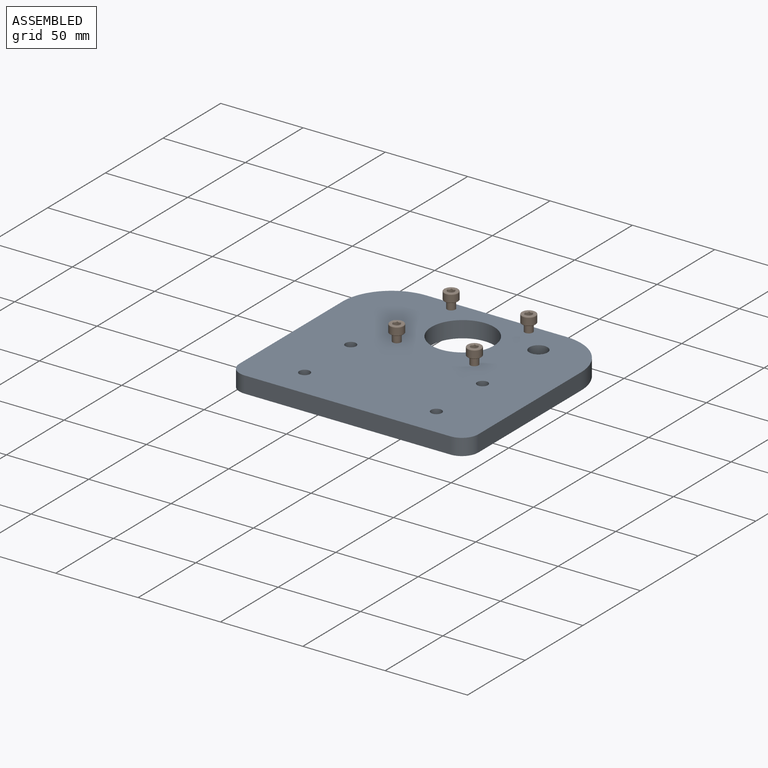
[diagram: assembled view]
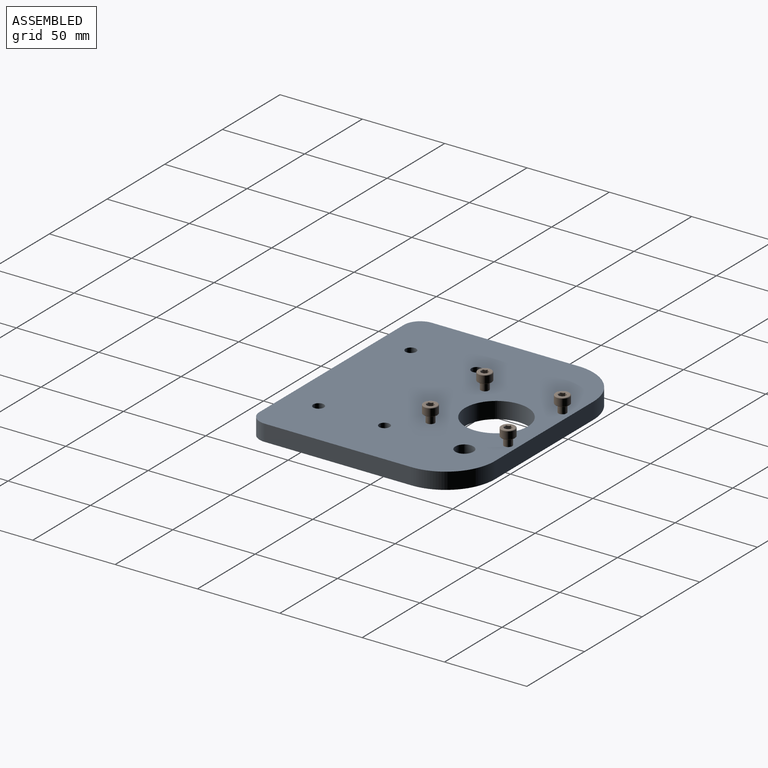
[diagram: assembled view, second angle]
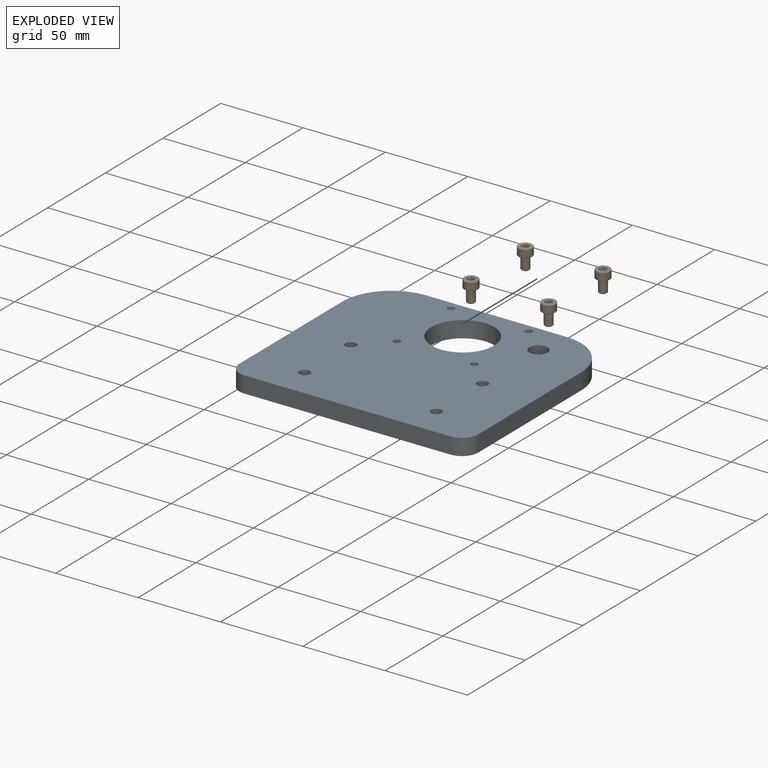
[diagram: exploded view]
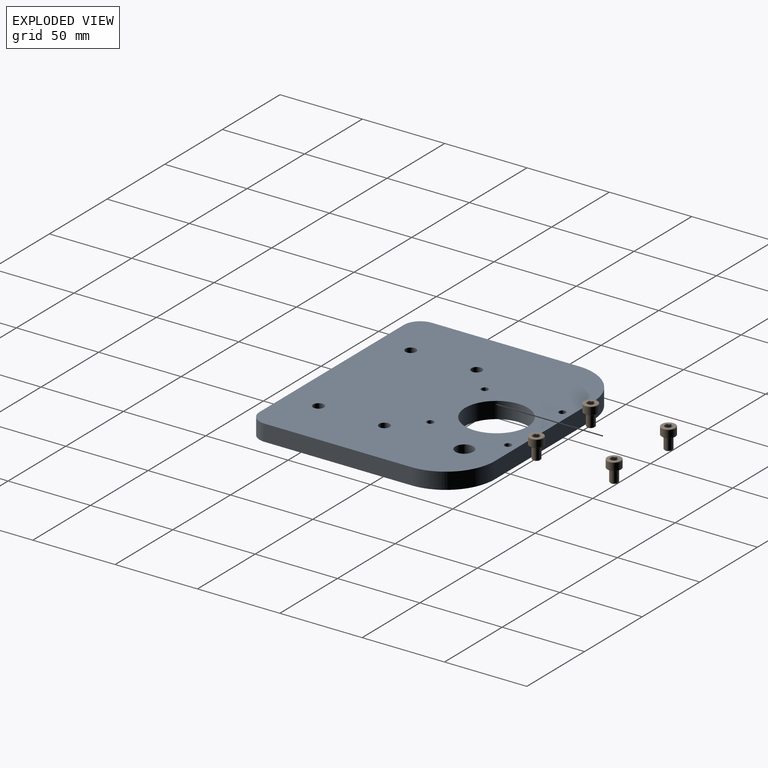
[diagram: exploded view, second angle]
FCSTD DOCUMENT  (FreeCAD 2023.1102R14555 (Git shallow))
Label: ПлитаМотораY
License: All rights reserved
LicenseURL: https://en.wikipedia.org/wiki/All_rights_reserved
objects: App::FeaturePython×13, Part::FeaturePython×11, App::LinkElement×4, App::Link×3
note: 10 computed .brp shape members not serialized (recipe doc carries the construction recipe); baked Part::Feature solids carry a one-line shape summary decoded from their .brp
EXTERNAL_REF file=Деталі/ПластинаY2.FCStd obj=Body
EXTERNAL_REF file=Деталі/NEMA23.FCStd obj=Assembly

FEATURE [App::Link] Link  label="ПластинаY2"
  AutoLinkLabel = false
  AutoPlacement = true
  LinkPlacement = pos=(-28.2,-128.2,-47.9) rot=(0,1.03712,0;0rad)
  LinkedObject = -> <external Деталі/ПластинаY2.FCStd>#Body
  Placement = pos=(-28.2,-128.2,-47.9) rot=(0,1.03712,0;0rad)
  SyncGroupVisibility = false
  TreeRank = 924
  _LinkVersion = 1
FEATURE [App::Link] Link001  label="NEMA23motor"
  AutoLinkLabel = false
  AutoPlacement = true
  LinkPlacement = pos=(0,0,0) rot=(0,1,0;3.14159rad)
  LinkedObject = -> <external Деталі/NEMA23.FCStd>#Assembly
  Placement = pos=(0,0,0) rot=(0,1,0;3.14159rad)
  SyncGroupVisibility = false
  TreeRank = 925
  _LinkVersion = 1
FEATURE [Part::FeaturePython] Screw  label="M5x8-Screw"  # Fasteners workbench fastener (typed FeaturePython)
  InvalidShape = false
  TreeRank = 942
  ValidateShape = false
  diameter = 6
  invert = false
  leftHanded = false
  length = 0
  lengthCustom = 8
  matchOuter = false
  offset = 0
  thread = false
  type = 48
FEATURE [App::LinkElement] Link002_i0
  LinkPlacement = pos=(-4.63,-4.63,-33.1) rot=(-8e-06,1,0;0rad)
  LinkedObject = -> Screw
  Placement = pos=(-4.63,-4.63,-33.1) rot=(-8e-06,1,0;0rad)
  TreeRank = 943
  _LinkOwner = 4763
  _LinkVersion = 1
FEATURE [App::LinkElement] Link002_i1
  LinkPlacement = pos=(-4.63,-51.77,-33.1) rot=(-8e-06,1.06905,0;0rad)
  LinkedObject = -> Screw
  Placement = pos=(-4.63,-51.77,-33.1) rot=(-8e-06,1.06905,0;0rad)
  TreeRank = 953
  _LinkOwner = 4763
  _LinkVersion = 0
FEATURE [App::LinkElement] Link002_i2
  LinkPlacement = pos=(-51.77,-4.63,-33.1) rot=(-8e-06,1.06905,0;0rad)
  LinkedObject = -> Screw
  Placement = pos=(-51.77,-4.63,-33.1) rot=(-8e-06,1.06905,0;0rad)
  TreeRank = 954
  _LinkOwner = 4763
  _LinkVersion = 0
FEATURE [App::LinkElement] Link002_i3
  LinkPlacement = pos=(-51.77,-51.77,-33.1) rot=(-8e-06,1.06905,0;0rad)
  LinkedObject = -> Screw
  Placement = pos=(-51.77,-51.77,-33.1) rot=(-8e-06,1.06905,0;0rad)
  TreeRank = 955
  _LinkOwner = 4763
  _LinkVersion = 0
FEATURE [App::Link] Link002  label="M5x8-Screw001"
  AutoLinkLabel = true
  AutoPlacement = true
  ElementCount = 4
  ElementList = -> [Link002_i0,Link002_i1,Link002_i2,Link002_i3]
  LinkedObject = -> Screw
  SyncGroupVisibility = false
  TreeRank = 941
  _LinkVersion = 1
FEATURE [Part::FeaturePython] Parts  # WARN: FeaturePython — macro-defined, semantics opaque (R4)
  Group = -> [Link,Link001,Link002]
  GroupMode = 0
  InvalidShape = false
  TreeRank = 929
  ValidateShape = false
  _LinkVersion = 1
FEATURE [Part::FeaturePython] Assembly  label="MotorPlateY"  # WARN: FeaturePython — macro-defined, semantics opaque (R4)
  AutoRelax = true
  BuildShape = 0
  Freeze = false
  Group = -> [Constraints,Elements,Parts]
  InvalidShape = false
  TreeRank = 926
  ValidateShape = false
  Verbose = false
  _LinkVersion = 1
  _SolverType = 0
  _Version = 1
FEATURE [App::FeaturePython] Constraints  # WARN: FeaturePython — macro-defined, semantics opaque (R4)
  Group = -> [Constraint,Constraint001,Constraint002,Constraint003]
  TreeRank = 927
  _LinkVersion = 1
  _Version = 1
FEATURE [App::FeaturePython] Elements  # WARN: FeaturePython — macro-defined, semantics opaque (R4)
  Group = -> [Element,Element001,Element002,Element003,_Element,_Element001,_Element002,_Element003]
  TreeRank = 928
  _LinkVersion = 1
FEATURE [Part::FeaturePython] Element  # link proxy (typed FeaturePython)
  Detach = false
  InvalidShape = false
  LinkTransform = true
  LinkedObject = -> Link [Pad.Edge27]
  TreeRank = 930
  ValidateShape = false
  _LinkVersion = 1
  _Parent = -> Elements
FEATURE [Part::FeaturePython] Element001  # link proxy (typed FeaturePython)
  Detach = false
  InvalidShape = false
  LinkTransform = true
  LinkedObject = -> Link001 [1.$Element002.]
  TreeRank = 931
  ValidateShape = false
  _LinkVersion = 1
  _Parent = -> Elements
FEATURE [App::FeaturePython] Constraint  label="PlaneCoincident"  # WARN: FeaturePython — macro-defined, semantics opaque (R4)
  Angle = 0
  AnglePitch = 0
  AngleRoll = 0
  Cascade = false
  Disabled = false
  Group = -> [ElementLink,ElementLink001]
  LockAngle = false
  Multiply = false
  OffsetX = 0
  OffsetY = 0
  TreeRank = 932
  _ConstraintType = 35
  _LinkVersion = 1
  _Parent = -> Constraints
FEATURE [App::FeaturePython] ElementLink  label="Element001"  # link proxy (typed FeaturePython)
  LinkTransform = true
  LinkedObject = -> Element001
  TreeRank = 933
  _LinkVersion = 1
  _Parent = -> Constraint
FEATURE [App::FeaturePython] ElementLink001  label="Element"  # link proxy (typed FeaturePython)
  LinkTransform = true
  LinkedObject = -> Element
  TreeRank = 934
  _LinkVersion = 1
  _Parent = -> Constraint
FEATURE [Part::FeaturePython] Element002  # link proxy (typed FeaturePython)
  Detach = false
  InvalidShape = false
  LinkTransform = true
  LinkedObject = -> Link [Pad.Edge48]
  TreeRank = 935
  ValidateShape = false
  _LinkVersion = 1
  _Parent = -> Elements
FEATURE [Part::FeaturePython] Element003  # link proxy (typed FeaturePython)
  Detach = false
  InvalidShape = false
  LinkTransform = true
  LinkedObject = -> Link001 [1.$Element013.]
  TreeRank = 936
  ValidateShape = false
  _LinkVersion = 1
  _Parent = -> Elements
FEATURE [App::FeaturePython] Constraint001  label="PlaneCoincident001"  # WARN: FeaturePython — macro-defined, semantics opaque (R4)
  Angle = 0
  AnglePitch = 0
  AngleRoll = 0
  Cascade = false
  Disabled = false
  Group = -> [ElementLink002,ElementLink003]
  LockAngle = false
  Multiply = false
  OffsetX = 0
  OffsetY = 0
  TreeRank = 937
  _ConstraintType = 35
  _LinkVersion = 1
  _Parent = -> Constraints
FEATURE [App::FeaturePython] ElementLink002  label="Element003"  # link proxy (typed FeaturePython)
  LinkTransform = true
  LinkedObject = -> Element003
  TreeRank = 938
  _LinkVersion = 1
  _Parent = -> Constraint001
FEATURE [App::FeaturePython] ElementLink003  label="Element002"  # link proxy (typed FeaturePython)
  LinkTransform = true
  LinkedObject = -> Element002
  TreeRank = 939
  _LinkVersion = 1
  _Parent = -> Constraint001
FEATURE [App::FeaturePython] Constraint002  label="Locked"  # WARN: FeaturePython — macro-defined, semantics opaque (R4)
  Disabled = false
  Group = -> [ElementLink004]
  TreeRank = 944
  _ConstraintType = 0
  _LinkVersion = 1
  _Parent = -> Constraints
FEATURE [App::FeaturePython] ElementLink004  label="_Element"  # link proxy (typed FeaturePython)
  LinkTransform = true
  LinkedObject = -> _Element
  TreeRank = 945
  _LinkVersion = 1
  _Parent = -> Constraint002
FEATURE [Part::FeaturePython] _Element  # link proxy (typed FeaturePython)
  Detach = false
  InvalidShape = false
  LinkTransform = true
  LinkedObject = -> Link [Pad.Face20]
  TreeRank = 946
  ValidateShape = false
  _LinkVersion = 1
  _Parent = -> Elements
FEATURE [App::FeaturePython] Constraint003  label="PlaneCoincident002"  # WARN: FeaturePython — macro-defined, semantics opaque (R4)
  Angle = 0
  AnglePitch = 0
  AngleRoll = 0
  Cascade = false
  Disabled = false
  Group = -> [ElementLink005,ElementLink006]
  LockAngle = false
  Multiply = true
  OffsetX = 0
  OffsetY = 0
  TreeRank = 947
  _ConstraintType = 35
  _LinkVersion = 1
  _Parent = -> Constraints
FEATURE [App::FeaturePython] ElementLink005  label="_Element001"  # link proxy (typed FeaturePython)
  AutoCount = true
  Count = 4
  LinkTransform = true
  LinkedObject = -> _Element001
  PlacementList = 4 placements: [(-8.88178e-16,0,0),(10.6063,-4.24377,-8),(23.3189,-4.24377,-8),(36.0316,-4.24377,-8)]
  ShowElement = false
  TreeRank = 948
  _LinkVersion = 1
  _Parent = -> Constraint003
FEATURE [Part::FeaturePython] _Element001  # link proxy (typed FeaturePython)
  Detach = false
  InvalidShape = false
  LinkTransform = true
  LinkedObject = -> Link002 [0.Edge30]
  TreeRank = 949
  ValidateShape = false
  _LinkVersion = 1
  _Parent = -> Elements
FEATURE [App::FeaturePython] ElementLink006  label="_Element004"  # link proxy (typed FeaturePython)
  LinkTransform = true
  LinkedObject = -> _Element003
  NoExpand = false
  TreeRank = 950
  _LinkVersion = 1
  _Parent = -> Constraint003
FEATURE [Part::FeaturePython] _Element002  # link proxy (typed FeaturePython)
  Detach = false
  InvalidShape = false
  LinkTransform = true
  LinkedObject = -> Link001 [1.$Element010.]
  TreeRank = 951
  ValidateShape = false
  _LinkVersion = 1
  _Parent = -> Elements
FEATURE [Part::FeaturePython] _Element003  label="_Element004"  # link proxy (typed FeaturePython)
  Detach = false
  InvalidShape = false
  LinkTransform = true
  LinkedObject = -> Link001 [1.$Element014.]
  TreeRank = 952
  ValidateShape = false
  _LinkVersion = 0
  _Parent = -> Elements

RESOLVED EXTERNAL PARTS (link-assembly join: the EXTERNAL_REF files above that resolve inside this repo's crawl, each included once):
---- part Деталі/NEMA23.FCStd = doc fcstd_a94dadf50ec1 ----
FCSTD DOCUMENT  (FreeCAD 2023.1102R14555 (Git shallow))
Label: NEMA23
License: All rights reserved
LicenseURL: http://en.wikipedia.org/wiki/All_rights_reserved
objects: Part::FeaturePython×17, App::FeaturePython×10, Sketcher::SketchObject×7, PartDesign::Pad×6, PartDesign::SubShapeBinder×3, PartDesign::Body×3, PartDesign::Boolean×1, PartDesign::Pocket×1, App::Link×1
note: 59 computed .brp shape members not serialized (recipe doc carries the construction recipe); baked Part::Feature solids carry a one-line shape summary decoded from their .brp
EXTERNAL_REF file=../../../ТаблицаПараметров.FCStd obj=Spreadsheet009
EXTERNAL_REF file=СтанинаСборка_.FCStd obj=Assembly

FEATURE [Sketcher::SketchObject] Sketch001
  ArcFitTolerance = 0
  ExternalBSplineMaxDegree = 0
  ExternalBSplineTolerance = 0
  FullyConstrained = true
  InternalTolerance = 1e-06
  InvalidShape = false
  MakeInternals = false
  MapMode = 5
  Placement = pos=(0,0,4.8) rot=(0,0,1;0rad)
  TreeRank = 0
  ValidateShape = false
  expr: Constraints[12] = <<Link(NEMA23Table)>>.DiamOtv / 2
  expr: Constraints[22] = <<Link(NEMA23Table)>>.DistOtv
  sketch-geometry (16):
    g0: ArcOfCircle CenterX=51.77 CenterY=-51.77 CenterZ=0 NormalX=0 NormalY=0 NormalZ=1 AngleXU=0 Radius=4.63 StartAngle=4.71239 EndAngle=6.28319
    g1: LineSegment StartX=56.4 StartY=-51.77 StartZ=0 EndX=56.4 EndY=-4.63 EndZ=0
    g2: ArcOfCircle CenterX=51.77 CenterY=-4.63 CenterZ=0 NormalX=0 NormalY=0 NormalZ=1 AngleXU=0 Radius=4.63 StartAngle=0 EndAngle=1.5708
    g3: LineSegment StartX=51.77 StartY=9e-16 StartZ=0 EndX=4.63 EndY=9e-16 EndZ=0
    g4: ArcOfCircle CenterX=4.63 CenterY=-4.63 CenterZ=0 NormalX=0 NormalY=0 NormalZ=1 AngleXU=0 Radius=4.63 StartAngle=1.5708 EndAngle=3.14159
    g5: LineSegment StartX=0 StartY=-4.63 StartZ=0 EndX=0 EndY=-51.77 EndZ=0
    g6: ArcOfCircle CenterX=4.63 CenterY=-51.77 CenterZ=0 NormalX=0 NormalY=0 NormalZ=1 AngleXU=-3.14159 Radius=4.63 StartAngle=0 EndAngle=1.5708
    g7: LineSegment StartX=4.63 StartY=-56.4 StartZ=0 EndX=51.77 EndY=-56.4 EndZ=0
    g8: Circle CenterX=4.63 CenterY=-4.63 CenterZ=0 NormalX=0 NormalY=0 NormalZ=1 AngleXU=0 Radius=2.5
    g9: LineSegment [constr] StartX=4.63 StartY=-4.63 StartZ=0 EndX=51.77 EndY=-4.63 EndZ=0
    g10: LineSegment [constr] StartX=51.77 StartY=-4.63 StartZ=0 EndX=51.77 EndY=-51.77 EndZ=0
    g11: LineSegment [constr] StartX=51.77 StartY=-51.77 StartZ=0 EndX=4.63 EndY=-51.77 EndZ=0
    g12: LineSegment [constr] StartX=4.63 StartY=-51.77 StartZ=0 EndX=4.63 EndY=-4.63 EndZ=0
    g13: Circle CenterX=51.77 CenterY=-4.63 CenterZ=0 NormalX=0 NormalY=0 NormalZ=1 AngleXU=0 Radius=2.5
    g14: Circle CenterX=51.77 CenterY=-51.77 CenterZ=0 NormalX=0 NormalY=0 NormalZ=1 AngleXU=0 Radius=2.5
    g15: Circle CenterX=4.63 CenterY=-51.77 CenterZ=0 NormalX=0 NormalY=0 NormalZ=1 AngleXU=0 Radius=2.5
  constraints (45):
    c: Coincident(g0,g1)
    c: Coincident(g1,g2)
    c: Coincident(g2,g3)
    c: Coincident(g3,g4)
    c: Coincident(g4,g5)
    c: Coincident(g5,g6)
    c: Coincident(g6,g7)
    c: Horizontal(g7)
    c: Coincident(g7,g0)
    c: DistanceX(g4) = 4.63
    c: DistanceY(g4) = -4.63
    c: Coincident(g4,g8)
    c: Radius(g8) = 2.5
    c: Coincident(g9,g10)
    c: Coincident(g10,g11)
    c: Coincident(g11,g12)
    c: Coincident(g12,g9)
    c: Horizontal(g9)
    c: Horizontal(g11)
    c: Vertical(g10)
    c: Vertical(g12)
    c: Equal(g9,g12)
    c: DistanceX(g9,g9) = 47.14
    c: Coincident(g6,g11)
    c: Coincident(g6,g15)
    c: Coincident(g0,g10)
    c: Coincident(g0,g14)
    c: Coincident(g2,g9)
    c: Coincident(g2,g13)
    c: Equal(g8,g13)
    c: Equal(g13,g14)
    c: Equal(g14,g15)
    c: Horizontal(g4,g4)
    c: Vertical(g3,g4)
    c: Horizontal(g5,g6)
    c: Vertical(g6,g6)
    c: Vertical(g0,g0)
    c: Horizontal(g0,g0)
    c: Horizontal(g1,g2)
    c: Vertical(g2,g2)
    c: Radius(g2) = 4.63
    c: Radius(g0) = 4.63
    c: Radius(g4) = 4.63
    c: Horizontal(g3)
    c: Vertical(g5)
FEATURE [PartDesign::Pad] Pad002
  AddSubType = 0
  AutoTaperInnerAngle = false
  CheckUpToFaceLimits = true
  ClaimChildren = false
  Direction = (0,0,1)
  Fit = 0
  FitJoin = 0
  InnerFit = 0
  InnerFitJoin = 0
  InvalidShape = false
  Length = 4.8
  Length2 = 100
  NewSolid = false
  Profile = -> Sketch001
  Suppress = false
  TaperInnerAngle = 0
  TaperInnerAngleRev = 0
  TreeRank = 0
  Type = 0
  UsePipeForDraft = true
  ValidateShape = true
  _ProfileBasedVersion = 0
FEATURE [Sketcher::SketchObject] Sketch004
  ArcFitTolerance = 0
  AttachmentSupport = -> [Pad002]
  ExternalBSplineMaxDegree = 0
  ExternalBSplineTolerance = 0
  FullyConstrained = true
  InternalTolerance = 1e-06
  InvalidShape = false
  MakeInternals = false
  MapMode = 5
  Placement = pos=(0,0,4.8) rot=(0,0,1;3.14159rad)
  Support = -> [Pad002]
  TreeRank = 0
  ValidateShape = false
  sketch-geometry (24):
    g0: LineSegment StartX=-56.4 StartY=45.14 StartZ=0 EndX=-56.4 EndY=11.26 EndZ=0
    g1: ArcOfCircle CenterX=-54.4 CenterY=45.14 CenterZ=0 NormalX=0 NormalY=0 NormalZ=1 AngleXU=3.14159 Radius=2 StartAngle=4.71239 EndAngle=6.28319
    g2: LineSegment StartX=-51.77 StartY=47.14 StartZ=0 EndX=-54.4 EndY=47.14 EndZ=0
    g3: ArcOfCircle CenterX=-51.77 CenterY=51.77 CenterZ=0 NormalX=0 NormalY=0 NormalZ=1 AngleXU=3.14159 Radius=4.63 StartAngle=1.5708 EndAngle=3.14159
    g4: LineSegment StartX=-47.14 StartY=54.4 StartZ=0 EndX=-47.14 EndY=51.77 EndZ=0
    g5: ArcOfCircle CenterX=-45.14 CenterY=54.4 CenterZ=0 NormalX=0 NormalY=0 NormalZ=1 AngleXU=3.14159 Radius=2 StartAngle=4.71239 EndAngle=6.28319
    g6: LineSegment StartX=-11.26 StartY=56.4 StartZ=0 EndX=-45.14 EndY=56.4 EndZ=0
    g7: ArcOfCircle CenterX=-11.26 CenterY=54.4 CenterZ=0 NormalX=0 NormalY=0 NormalZ=1 AngleXU=3.14159 Radius=2 StartAngle=3.14159 EndAngle=4.71239
    g8: LineSegment StartX=-9.26 StartY=51.77 StartZ=0 EndX=-9.26 EndY=54.4 EndZ=0
    g9: ArcOfCircle CenterX=-4.63 CenterY=51.77 CenterZ=0 NormalX=0 NormalY=0 NormalZ=1 AngleXU=3.14159 Radius=4.63 StartAngle=0 EndAngle=1.5708
    g10: LineSegment StartX=-2 StartY=47.14 StartZ=0 EndX=-4.63 EndY=47.14 EndZ=0
    g11: ArcOfCircle CenterX=-2 CenterY=45.14 CenterZ=0 NormalX=0 NormalY=0 NormalZ=1 AngleXU=3.14159 Radius=2 StartAngle=3.14159 EndAngle=4.71239
    g12: LineSegment StartX=-3.1e-15 StartY=11.26 StartZ=0 EndX=-6.2e-15 EndY=45.14 EndZ=0
    g13: ArcOfCircle CenterX=-2 CenterY=11.26 CenterZ=0 NormalX=0 NormalY=0 NormalZ=1 AngleXU=3.14159 Radius=2 StartAngle=1.5708 EndAngle=3.14159
    g14: LineSegment StartX=-4.63 StartY=9.26 StartZ=0 EndX=-2 EndY=9.26 EndZ=0
    g15: ArcOfCircle CenterX=-4.63 CenterY=4.63 CenterZ=0 NormalX=0 NormalY=0 NormalZ=1 AngleXU=3.14159 Radius=4.63 StartAngle=4.71239 EndAngle=6.28319
    g16: LineSegment StartX=-9.26 StartY=2 StartZ=0 EndX=-9.26 EndY=4.63 EndZ=0
    g17: ArcOfCircle CenterX=-11.26 CenterY=2 CenterZ=0 NormalX=0 NormalY=0 NormalZ=1 AngleXU=-3.14159 Radius=2 StartAngle=1.5708 EndAngle=3.14159
    g18: LineSegment StartX=-45.14 StartY=1.057e-13 StartZ=0 EndX=-11.26 EndY=1.15e-13 EndZ=0
    g19: ArcOfCircle CenterX=-45.14 CenterY=2 CenterZ=0 NormalX=0 NormalY=0 NormalZ=1 AngleXU=3.14159 Radius=2 StartAngle=0 EndAngle=1.5708
    g20: LineSegment StartX=-47.14 StartY=4.63 StartZ=0 EndX=-47.14 EndY=2 EndZ=0
    g21: ArcOfCircle CenterX=-51.77 CenterY=4.63 CenterZ=0 NormalX=0 NormalY=0 NormalZ=1 AngleXU=3.14159 Radius=4.63 StartAngle=3.14159 EndAngle=4.71239
    g22: LineSegment StartX=-54.4 StartY=9.26 StartZ=0 EndX=-51.77 EndY=9.26 EndZ=0
    g23: ArcOfCircle CenterX=-54.4 CenterY=11.26 CenterZ=0 NormalX=0 NormalY=0 NormalZ=1 AngleXU=3.14159 Radius=2 StartAngle=0 EndAngle=1.5708
  constraints (84):
    c: Vertical(g0)
    c: Coincident(g0,g1)
    c: Coincident(g1,g2)
    c: Coincident(g2,g3)
    c: Coincident(g3,g4)
    c: Coincident(g4,g5)
    c: Coincident(g5,g6)
    c: Coincident(g6,g7)
    c: Coincident(g7,g8)
    c: Vertical(g8)
    c: Coincident(g8,g9)
    c: Coincident(g9,g10)
    c: Coincident(g10,g11)
    c: Coincident(g11,g12)
    c: Coincident(g12,g13)
    c: Coincident(g13,g14)
    c: Coincident(g14,g15)
    c: Coincident(g15,g16)
    c: Vertical(g16)
    c: Coincident(g16,g17)
    c: Coincident(g17,g18)
    c: Coincident(g18,g19)
    c: Coincident(g19,g20)
    c: Coincident(g20,g21)
    c: Coincident(g21,g22)
    c: Horizontal(g22)
    c: Coincident(g22,g23)
    c: Coincident(g23,g0)
    c: Equal(g0,g6)
    c: Equal(g6,g12)
    c: Equal(g12,g18)
    c: DistanceX(g6,g6) = 33.88
    c: Radius(g3) = 4.63
    c: Equal(g3,g9)
    c: Equal(g3,g15)
    c: Equal(g3,g21)
    c: Equal(g2,g22)
    c: Equal(g22,g20)
    c: Equal(g20,g16)
    c: Equal(g16,g14)
    c: Equal(g14,g10)
    c: Equal(g10,g8)
    c: Equal(g8,g4)
    c: DistanceY(g4,g4) = 2.63
    c: Radius(g5) = 2
    c: Equal(g5,g1)
    c: Equal(g5,g23)
    c: Equal(g5,g19)
    c: Equal(g5,g17)
    c: Equal(g5,g13)
    c: Equal(g5,g11)
    c: Equal(g5,g7)
    c: Horizontal(g0,g1)
    c: Horizontal(g1,g11)
    c: Horizontal(g11,g11)
    c: Horizontal(g0,g23)
    c: Horizontal(g23,g13)
    c: Horizontal(g13,g12)
    c: Vertical(g22,g23)
    c: Vertical(g1,g1)
    c: Vertical(g11,g10)
    c: Vertical(g10,g13)
    c: Vertical(g13,g13)
    c: Horizontal(g4,g5)
    c: Horizontal(g7,g7)
    c: Horizontal(g19,g19)
    c: Horizontal(g19,g17)
    c: Horizontal(g17,g16)
    c: Vertical(g18,g19)
    c: Vertical(g19,g5)
    c: Vertical(g5,g5)
    c: Vertical(g6,g7)
    c: Vertical(g7,g17)
    c: Vertical(g4)
    c: Horizontal(g2)
    c: Horizontal(g10)
    c: Horizontal(g14)
    c: Vertical(g20)
    c: Vertical(g3,g2)
    c: Horizontal(g21,g20)
    c: Horizontal(g8,g9)
    c: Horizontal(g3,g3)
    c: Vertical(g15,g14)
    c: PointOnObject(g18,g-1)
FEATURE [PartDesign::Pad] Pad003
  AddSubType = 0
  AutoTaperInnerAngle = false
  BaseFeature = -> Pad002
  CheckUpToFaceLimits = true
  ClaimChildren = false
  Direction = (0,0,1)
  Fit = 0
  FitJoin = 0
  InnerFit = 0
  InnerFitJoin = 0
  InvalidShape = false
  Length = 6.7
  Length2 = 100
  NewSolid = false
  Profile = -> Sketch004
  Reversed = true
  Suppress = false
  TaperInnerAngle = 0
  TaperInnerAngleRev = 0
  TreeRank = 0
  Type = 0
  UsePipeForDraft = true
  ValidateShape = true
  _ProfileBasedVersion = 0
FEATURE [Sketcher::SketchObject] Sketch005
  ArcFitTolerance = 0
  AttachmentSupport = -> [Pad003]
  ExternalBSplineMaxDegree = 0
  ExternalBSplineTolerance = 0
  FullyConstrained = true
  InternalTolerance = 1e-06
  InvalidShape = false
  MakeInternals = false
  MapMode = 5
  Placement = pos=(0,0,9.6) rot=(0,0,1;0rad)
  Support = -> [Pad003]
  TreeRank = 0
  ValidateShape = false
  expr: Constraints[0] = 28.2
  expr: Constraints[1] = -28.2
  expr: Constraints[2] = <<Link(NEMA23Table)>>.PosadkaMotor
  sketch-geometry (1):
    g0: Circle CenterX=28.2 CenterY=-28.2 CenterZ=0 NormalX=0 NormalY=0 NormalZ=1 AngleXU=0 Radius=19.05
  constraints (3):
    c: DistanceX(g0) = 28.2
    c: DistanceY(g0) = -28.2
    c: Diameter(g0) = 38.1
FEATURE [PartDesign::Pad] Pad004
  AddSubType = 0
  AutoTaperInnerAngle = false
  BaseFeature = -> Pad003
  CheckUpToFaceLimits = true
  ClaimChildren = false
  Direction = (0,0,1)
  Fit = 0
  FitJoin = 0
  InnerFit = 0
  InnerFitJoin = 0
  InvalidShape = false
  Length = 1.6
  Length2 = 100
  NewSolid = false
  Profile = -> Sketch005
  Suppress = false
  TaperInnerAngle = 0
  TaperInnerAngleRev = 0
  TreeRank = 0
  Type = 0
  UsePipeForDraft = true
  ValidateShape = true
  _ProfileBasedVersion = 0
FEATURE [PartDesign::SubShapeBinder] Reference  label="Reference(Pad002)"
  BindCopyOnChange = 0
  BindMode = 0
  ClaimChildren = false
  Context = -> <external СтанинаСборка_.FCStd>#Assembly [Parts.Link003.Assembly.Parts.Body002.Boolean.Reference.]
  EdgeTolerance = 1e-06
  FillStyle = 0
  Fuse = true
  InvalidShape = false
  MakeFace = true
  MergeEdges = true
  OffsetFill = false
  OffsetIntersection = false
  OffsetJoinType = 0
  OffsetOpenResult = false
  Outline = false
  PartialLoad = false
  Refine = true
  Relative = true
  SplitEdges = false
  Support = -> [Pad002]
  TightBound = false
  TreeRank = 0
  ValidateShape = false
  _Version = 7
FEATURE [PartDesign::SubShapeBinder] Reference001  label="Reference001(Pad003)"
  BindCopyOnChange = 0
  BindMode = 0
  ClaimChildren = false
  Context = -> <external СтанинаСборка_.FCStd>#Assembly [Parts.Link003.Assembly.Parts.Body002.Boolean.Reference001.]
  EdgeTolerance = 1e-06
  FillStyle = 0
  Fuse = true
  InvalidShape = false
  MakeFace = true
  MergeEdges = true
  OffsetFill = false
  OffsetIntersection = false
  OffsetJoinType = 0
  OffsetOpenResult = false
  Outline = false
  PartialLoad = false
  Refine = true
  Relative = true
  SplitEdges = false
  Support = -> [Pad003]
  TightBound = false
  TreeRank = 0
  ValidateShape = false
  _Version = 7
FEATURE [PartDesign::SubShapeBinder] Reference002  label="Reference002(Pad004)"
  BindCopyOnChange = 0
  BindMode = 0
  ClaimChildren = false
  Context = -> <external СтанинаСборка_.FCStd>#Assembly [Parts.Link003.Assembly.Parts.Body002.Boolean.Reference002.]
  EdgeTolerance = 1e-06
  FillStyle = 0
  Fuse = true
  InvalidShape = false
  MakeFace = true
  MergeEdges = true
  OffsetFill = false
  OffsetIntersection = false
  OffsetJoinType = 0
  OffsetOpenResult = false
  Outline = false
  PartialLoad = false
  Refine = true
  Relative = true
  SplitEdges = false
  Support = -> [Pad004]
  TightBound = false
  TreeRank = 0
  ValidateShape = false
  _Version = 7
FEATURE [PartDesign::Boolean] Boolean
  ClaimAllChildren = false
  ExportMode = 0
  Group = -> [Reference,Reference001,Reference002]
  InvalidShape = false
  NewSolid = true
  Refine = true
  Suppress = false
  TreeRank = 0
  Type = 0
  ValidateShape = true
  _ExportChildren = -> [Reference,Reference001,Reference002]
  _GroupVersion = 1
FEATURE [Sketcher::SketchObject] Sketch007
  ArcFitTolerance = 0
  AttachmentSupport = -> [Boolean]
  ExternalBSplineMaxDegree = 0
  ExternalBSplineTolerance = 0
  FullyConstrained = true
  InternalTolerance = 1e-06
  InvalidShape = false
  MakeInternals = false
  MapMode = 5
  Placement = pos=(0,0,-1.9) rot=(1,0,0;3.14159rad)
  Support = -> [Boolean]
  TreeRank = 0
  ValidateShape = false
  expr: Constraints[0] = 28.2
  expr: Constraints[1] = 28.2
  expr: Constraints[2] = 6
  sketch-geometry (1):
    g0: Circle CenterX=28.2 CenterY=28.2 CenterZ=0 NormalX=0 NormalY=0 NormalZ=1 AngleXU=0 Radius=3
  constraints (3):
    c: DistanceX(g0) = 28.2
    c: DistanceY(g0) = 28.2
    c: Diameter(g0) = 6
FEATURE [PartDesign::Pocket] Pocket
  AddSubType = 1
  AutoTaperInnerAngle = false
  BaseFeature = -> Boolean
  CheckUpToFaceLimits = true
  ClaimChildren = false
  Direction = (0,0,1)
  Fit = 0
  FitJoin = 0
  InnerFit = 0
  InnerFitJoin = 0
  InvalidShape = false
  Length = 0
  Length2 = 100
  NewSolid = false
  Profile = -> Sketch007
  Suppress = false
  TaperInnerAngle = 0
  TaperInnerAngleRev = 0
  TreeRank = 0
  Type = 1
  UsePipeForDraft = true
  ValidateShape = true
  _ProfileBasedVersion = 0
  _Version = 0
FEATURE [Sketcher::SketchObject] Sketch008
  ArcFitTolerance = 0
  ExternalBSplineMaxDegree = 0
  ExternalBSplineTolerance = 0
  FullyConstrained = true
  InternalTolerance = 1e-06
  InvalidShape = false
  MakeInternals = false
  MapMode = 2
  Placement = pos=(0,0,-41.6) rot=(0,0,1;3.14159rad)
  TreeRank = 0
  ValidateShape = false
  sketch-geometry (26):
    g0: LineSegment StartX=-56.4 StartY=45.14 StartZ=0 EndX=-56.4 EndY=11.26 EndZ=0
    g1: ArcOfCircle CenterX=-54.4 CenterY=45.14 CenterZ=0 NormalX=0 NormalY=0 NormalZ=1 AngleXU=3.14159 Radius=2 StartAngle=4.71239 EndAngle=6.28319
    g2: LineSegment StartX=-51.77 StartY=47.14 StartZ=0 EndX=-54.4 EndY=47.14 EndZ=0
    g3: ArcOfCircle CenterX=-51.77 CenterY=51.77 CenterZ=0 NormalX=0 NormalY=0 NormalZ=1 AngleXU=3.14159 Radius=4.63 StartAngle=1.5708 EndAngle=3.14159
    g4: LineSegment StartX=-47.14 StartY=54.4 StartZ=0 EndX=-47.14 EndY=51.77 EndZ=0
    g5: ArcOfCircle CenterX=-45.14 CenterY=54.4 CenterZ=0 NormalX=0 NormalY=0 NormalZ=1 AngleXU=3.14159 Radius=2 StartAngle=4.71239 EndAngle=6.28319
    g6: LineSegment StartX=-11.26 StartY=56.4 StartZ=0 EndX=-45.14 EndY=56.4 EndZ=0
    g7: ArcOfCircle CenterX=-11.26 CenterY=54.4 CenterZ=0 NormalX=0 NormalY=0 NormalZ=1 AngleXU=3.14159 Radius=2 StartAngle=3.14159 EndAngle=4.71239
    g8: LineSegment StartX=-9.26 StartY=51.77 StartZ=0 EndX=-9.26 EndY=54.4 EndZ=0
    g9: ArcOfCircle CenterX=-4.63 CenterY=51.77 CenterZ=0 NormalX=0 NormalY=0 NormalZ=1 AngleXU=3.14159 Radius=4.63 StartAngle=0 EndAngle=1.5708
    g10: LineSegment StartX=-2 StartY=47.14 StartZ=0 EndX=-4.63 EndY=47.14 EndZ=0
    g11: ArcOfCircle CenterX=-2 CenterY=45.14 CenterZ=0 NormalX=0 NormalY=0 NormalZ=1 AngleXU=3.14159 Radius=2 StartAngle=3.14159 EndAngle=4.71239
    g12: LineSegment StartX=0 StartY=11.26 StartZ=0 EndX=-7.1e-15 EndY=45.14 EndZ=0
    g13: ArcOfCircle CenterX=-2 CenterY=11.26 CenterZ=0 NormalX=0 NormalY=0 NormalZ=1 AngleXU=3.14159 Radius=2 StartAngle=1.5708 EndAngle=3.14159
    g14: LineSegment StartX=-4.63 StartY=9.26 StartZ=0 EndX=-2 EndY=9.26 EndZ=0
    g15: ArcOfCircle CenterX=-4.63 CenterY=4.63 CenterZ=0 NormalX=0 NormalY=0 NormalZ=1 AngleXU=3.14159 Radius=4.63 StartAngle=4.71239 EndAngle=6.28319
    g16: LineSegment StartX=-9.26 StartY=2 StartZ=0 EndX=-9.26 EndY=4.63 EndZ=0
    g17: ArcOfCircle CenterX=-11.26 CenterY=2 CenterZ=0 NormalX=0 NormalY=0 NormalZ=1 AngleXU=-3.14159 Radius=2 StartAngle=1.5708 EndAngle=3.14159
    g18: LineSegment StartX=-45.14 StartY=1.43e-13 StartZ=0 EndX=-11.26 EndY=1.43e-13 EndZ=0
    g19: ArcOfCircle CenterX=-45.14 CenterY=2 CenterZ=0 NormalX=0 NormalY=0 NormalZ=1 AngleXU=3.14159 Radius=2 StartAngle=0 EndAngle=1.5708
    g20: LineSegment StartX=-47.14 StartY=4.63 StartZ=0 EndX=-47.14 EndY=2 EndZ=0
    g21: ArcOfCircle CenterX=-51.77 CenterY=4.63 CenterZ=0 NormalX=0 NormalY=0 NormalZ=1 AngleXU=3.14159 Radius=4.63 StartAngle=3.14159 EndAngle=4.71239
    g22: LineSegment StartX=-54.4 StartY=9.26 StartZ=0 EndX=-51.77 EndY=9.26 EndZ=0
    g23: ArcOfCircle CenterX=-54.4 CenterY=11.26 CenterZ=0 NormalX=0 NormalY=0 NormalZ=1 AngleXU=3.14159 Radius=2 StartAngle=0 EndAngle=1.5708
    g24: GeomPoint [constr] X=-28.2 Y=28.2 Z=0
    g25: Circle CenterX=-28.2 CenterY=28.2 CenterZ=0 NormalX=0 NormalY=0 NormalZ=1 AngleXU=0 Radius=3
  constraints (88):
    c: Vertical(g0)
    c: Coincident(g0,g1)
    c: Coincident(g1,g2)
    c: Coincident(g2,g3)
    c: Coincident(g3,g4)
    c: Coincident(g4,g5)
    c: Coincident(g5,g6)
    c: Coincident(g6,g7)
    c: Coincident(g7,g8)
    c: Vertical(g8)
    c: Coincident(g8,g9)
    c: Coincident(g9,g10)
    c: Coincident(g10,g11)
    c: Coincident(g11,g12)
    c: Coincident(g12,g13)
    c: Coincident(g13,g14)
    c: Coincident(g14,g15)
    c: Coincident(g15,g16)
    c: Vertical(g16)
    c: Coincident(g16,g17)
    c: Coincident(g17,g18)
    c: Coincident(g18,g19)
    c: Coincident(g19,g20)
    c: Coincident(g20,g21)
    c: Coincident(g21,g22)
    c: Horizontal(g22)
    c: Coincident(g22,g23)
    c: Coincident(g23,g0)
    c: Equal(g0,g6)
    c: Equal(g6,g12)
    c: Equal(g12,g18)
    c: DistanceX(g6,g6) = 33.88
    c: Radius(g3) = 4.63
    c: Equal(g3,g9)
    c: Equal(g3,g15)
    c: Equal(g3,g21)
    c: Equal(g2,g22)
    c: Equal(g22,g20)
    c: Equal(g20,g16)
    c: Equal(g16,g14)
    c: Equal(g14,g10)
    c: Equal(g10,g8)
    c: Equal(g8,g4)
    c: DistanceY(g4,g4) = 2.63
    c: Radius(g5) = 2
    c: Equal(g5,g1)
    c: Equal(g5,g23)
    c: Equal(g5,g19)
    c: Equal(g5,g17)
    c: Equal(g5,g13)
    c: Equal(g5,g11)
    c: Equal(g5,g7)
    c: Horizontal(g0,g1)
    c: Horizontal(g1,g11)
    c: Horizontal(g11,g11)
    c: Horizontal(g0,g23)
    c: Horizontal(g23,g13)
    c: Horizontal(g13,g12)
    c: Vertical(g22,g23)
    c: Vertical(g1,g1)
    c: Vertical(g11,g10)
    c: Vertical(g10,g13)
    c: Vertical(g13,g13)
    c: Horizontal(g4,g5)
    c: Horizontal(g7,g7)
    c: Horizontal(g19,g19)
    c: Horizontal(g19,g17)
    c: Horizontal(g17,g16)
    c: Vertical(g18,g19)
    c: Vertical(g19,g5)
    c: Vertical(g5,g5)
    c: Vertical(g6,g7)
    c: Vertical(g7,g17)
    c: DistanceX(g24) = -28.2
    c: DistanceY(g24) = 28.2
    c: Radius(g25) = 3
    c: Coincident(g24,g25)
    c: Vertical(g4)
    c: Horizontal(g2)
    c: Horizontal(g10)
    c: Horizontal(g14)
    c: Vertical(g20)
    c: Vertical(g3,g2)
    c: Horizontal(g21,g20)
    c: Horizontal(g8,g9)
    c: Horizontal(g3,g3)
    c: Vertical(g15,g14)
    c: PointOnObject(g18,g-1)
FEATURE [PartDesign::Pad] Pad005
  AddSubType = 0
  AutoTaperInnerAngle = false
  CheckUpToFaceLimits = true
  ClaimChildren = false
  Direction = (1,1,1)
  Fit = 0
  FitJoin = 0
  InnerFit = 0
  InnerFitJoin = 0
  InvalidShape = false
  Length = 11.5
  Length2 = 100
  NewSolid = false
  Placement = pos=(0,0,-41.6) rot=(0,0,1;3.14159rad)
  Profile = -> Sketch008
  Suppress = false
  TaperInnerAngle = 0
  TaperInnerAngleRev = 0
  TreeRank = 0
  Type = 0
  UsePipeForDraft = true
  ValidateShape = true
  _ProfileBasedVersion = 0
FEATURE [PartDesign::Body] Body003  label="ЗадняяКрышкаМотора"
  AutoGroupSolids = true
  ClaimAllChildren = false
  ExportMode = 0
  Group = -> [Sketch008,Pad005]
  InvalidShape = false
  Origin = -> Origin003
  Placement = pos=(2.13062e-11,5.5584e-12,34.5) rot=(0,0,1;0rad)
  Tip = -> Pad005
  TreeRank = 0
  ValidateShape = false
  _ExportChildren = -> [Pad005]
  _GroupVersion = 1
FEATURE [Sketcher::SketchObject] Sketch009
  ArcFitTolerance = 0
  ExternalBSplineMaxDegree = 0
  ExternalBSplineTolerance = 0
  FullyConstrained = true
  InternalTolerance = 1e-06
  InvalidShape = false
  MakeInternals = false
  MapMode = 2
  Placement = pos=(0,0,-41.6) rot=(0,0,1;3.14159rad)
  TreeRank = 0
  ValidateShape = false
  sketch-geometry (26):
    g0: LineSegment StartX=-56.4 StartY=45.14 StartZ=0 EndX=-56.4 EndY=11.26 EndZ=0
    g1: ArcOfCircle CenterX=-54.4 CenterY=45.14 CenterZ=0 NormalX=0 NormalY=0 NormalZ=1 AngleXU=3.14159 Radius=2 StartAngle=4.71239 EndAngle=6.28319
    g2: LineSegment StartX=-51.77 StartY=47.14 StartZ=0 EndX=-54.4 EndY=47.14 EndZ=0
    g3: ArcOfCircle CenterX=-51.77 CenterY=51.77 CenterZ=0 NormalX=0 NormalY=0 NormalZ=1 AngleXU=3.14159 Radius=4.63 StartAngle=1.5708 EndAngle=3.14159
    g4: LineSegment StartX=-47.14 StartY=54.4 StartZ=0 EndX=-47.14 EndY=51.77 EndZ=0
    g5: ArcOfCircle CenterX=-45.14 CenterY=54.4 CenterZ=0 NormalX=0 NormalY=0 NormalZ=1 AngleXU=3.14159 Radius=2 StartAngle=4.71239 EndAngle=6.28319
    g6: LineSegment StartX=-11.26 StartY=56.4 StartZ=0 EndX=-45.14 EndY=56.4 EndZ=0
    g7: ArcOfCircle CenterX=-11.26 CenterY=54.4 CenterZ=0 NormalX=0 NormalY=0 NormalZ=1 AngleXU=3.14159 Radius=2 StartAngle=3.14159 EndAngle=4.71239
    g8: LineSegment StartX=-9.26 StartY=51.77 StartZ=0 EndX=-9.26 EndY=54.4 EndZ=0
    g9: ArcOfCircle CenterX=-4.63 CenterY=51.77 CenterZ=0 NormalX=0 NormalY=0 NormalZ=1 AngleXU=3.14159 Radius=4.63 StartAngle=0 EndAngle=1.5708
    g10: LineSegment StartX=-2 StartY=47.14 StartZ=0 EndX=-4.63 EndY=47.14 EndZ=0
    g11: ArcOfCircle CenterX=-2 CenterY=45.14 CenterZ=0 NormalX=0 NormalY=0 NormalZ=1 AngleXU=3.14159 Radius=2 StartAngle=3.14159 EndAngle=4.71239
    g12: LineSegment StartX=-2.7e-15 StartY=11.26 StartZ=0 EndX=-2.7e-15 EndY=45.14 EndZ=0
    g13: ArcOfCircle CenterX=-2 CenterY=11.26 CenterZ=0 NormalX=0 NormalY=0 NormalZ=1 AngleXU=3.14159 Radius=2 StartAngle=1.5708 EndAngle=3.14159
    g14: LineSegment StartX=-4.63 StartY=9.26 StartZ=0 EndX=-2 EndY=9.26 EndZ=0
    g15: ArcOfCircle CenterX=-4.63 CenterY=4.63 CenterZ=0 NormalX=0 NormalY=0 NormalZ=1 AngleXU=3.14159 Radius=4.63 StartAngle=4.71239 EndAngle=6.28319
    g16: LineSegment StartX=-9.26 StartY=2 StartZ=0 EndX=-9.26 EndY=4.63 EndZ=0
    g17: ArcOfCircle CenterX=-11.26 CenterY=2 CenterZ=0 NormalX=0 NormalY=0 NormalZ=1 AngleXU=-3.14159 Radius=2 StartAngle=1.5708 EndAngle=3.14159
    g18: LineSegment StartX=-45.14 StartY=1.43e-13 StartZ=0 EndX=-11.26 EndY=1.43e-13 EndZ=0
    g19: ArcOfCircle CenterX=-45.14 CenterY=2 CenterZ=0 NormalX=0 NormalY=0 NormalZ=1 AngleXU=3.14159 Radius=2 StartAngle=0 EndAngle=1.5708
    g20: LineSegment StartX=-47.14 StartY=4.63 StartZ=0 EndX=-47.14 EndY=2 EndZ=0
    g21: ArcOfCircle CenterX=-51.77 CenterY=4.63 CenterZ=0 NormalX=0 NormalY=0 NormalZ=1 AngleXU=3.14159 Radius=4.63 StartAngle=3.14159 EndAngle=4.71239
    g22: LineSegment StartX=-54.4 StartY=9.26 StartZ=0 EndX=-51.77 EndY=9.26 EndZ=0
    g23: ArcOfCircle CenterX=-54.4 CenterY=11.26 CenterZ=0 NormalX=0 NormalY=0 NormalZ=1 AngleXU=3.14159 Radius=2 StartAngle=0 EndAngle=1.5708
    g24: GeomPoint [constr] X=-28.2 Y=28.2 Z=0
    g25: Circle CenterX=-28.2 CenterY=28.2 CenterZ=0 NormalX=0 NormalY=0 NormalZ=1 AngleXU=0 Radius=3
  constraints (88):
    c: Vertical(g0)
    c: Coincident(g0,g1)
    c: Coincident(g1,g2)
    c: Coincident(g2,g3)
    c: Coincident(g3,g4)
    c: Coincident(g4,g5)
    c: Coincident(g5,g6)
    c: Coincident(g6,g7)
    c: Coincident(g7,g8)
    c: Vertical(g8)
    c: Coincident(g8,g9)
    c: Coincident(g9,g10)
    c: Coincident(g10,g11)
    c: Coincident(g11,g12)
    c: Coincident(g12,g13)
    c: Coincident(g13,g14)
    c: Coincident(g14,g15)
    c: Coincident(g15,g16)
    c: Vertical(g16)
    c: Coincident(g16,g17)
    c: Coincident(g17,g18)
    c: Coincident(g18,g19)
    c: Coincident(g19,g20)
    c: Coincident(g20,g21)
    c: Coincident(g21,g22)
    c: Horizontal(g22)
    c: Coincident(g22,g23)
    c: Coincident(g23,g0)
    c: Equal(g0,g6)
    c: Equal(g6,g12)
    c: Equal(g12,g18)
    c: DistanceX(g6,g6) = 33.88
    c: Radius(g3) = 4.63
    c: Equal(g3,g9)
    c: Equal(g3,g15)
    c: Equal(g3,g21)
    c: Equal(g2,g22)
    c: Equal(g22,g20)
    c: Equal(g20,g16)
    c: Equal(g16,g14)
    c: Equal(g14,g10)
    c: Equal(g10,g8)
    c: Equal(g8,g4)
    c: DistanceY(g4,g4) = 2.63
    c: Radius(g5) = 2
    c: Equal(g5,g1)
    c: Equal(g5,g23)
    c: Equal(g5,g19)
    c: Equal(g5,g17)
    c: Equal(g5,g13)
    c: Equal(g5,g11)
    c: Equal(g5,g7)
    c: Horizontal(g0,g1)
    c: Horizontal(g1,g11)
    c: Horizontal(g11,g11)
    c: Horizontal(g0,g23)
    c: Horizontal(g23,g13)
    c: Horizontal(g13,g12)
    c: Vertical(g22,g23)
    c: Vertical(g1,g1)
    c: Vertical(g11,g10)
    c: Vertical(g10,g13)
    c: Vertical(g13,g13)
    c: Horizontal(g4,g5)
    c: Horizontal(g7,g7)
    c: Horizontal(g19,g19)
    c: Horizontal(g19,g17)
    c: Horizontal(g17,g16)
    c: Vertical(g18,g19)
    c: Vertical(g19,g5)
    c: Vertical(g5,g5)
    c: Vertical(g6,g7)
    c: Vertical(g7,g17)
    c: DistanceX(g24) = -28.2
    c: DistanceY(g24) = 28.2
    c: Radius(g25) = 3
    c: Coincident(g24,g25)
    c: Vertical(g4)
    c: Horizontal(g2)
    c: Horizontal(g10)
    c: Horizontal(g14)
    c: Vertical(g20)
    c: Vertical(g3,g2)
    c: Horizontal(g21,g20)
    c: Horizontal(g8,g9)
    c: Horizontal(g3,g3)
    c: Vertical(g15,g14)
    c: PointOnObject(g18,g-1)
FEATURE [PartDesign::Pad] Pad
  AddSubType = 0
  AlongSketchNormal = false
  AutoTaperInnerAngle = false
  CheckUpToFaceLimits = true
  ClaimChildren = false
  Direction = (0,0,1)
  Fit = 0
  FitJoin = 0
  InnerFit = 0
  InnerFitJoin = 0
  InvalidShape = false
  Length = 22
  Length2 = 100
  NewSolid = false
  Profile = -> Sketch009
  Suppress = false
  TaperInnerAngle = 0
  TaperInnerAngleRev = 0
  TreeRank = 0
  Type = 0
  UsePipeForDraft = true
  ValidateShape = true
  _ProfileBasedVersion = 0
  expr: Length = <<Link(NEMA23Table)>>.BodyLen
FEATURE [PartDesign::Body] Body  label="ТелоМотора"
  AutoGroupSolids = true
  ClaimAllChildren = false
  ExportMode = 0
  Group = -> [Sketch009,Pad]
  InvalidShape = false
  Origin = -> Origin
  Placement = pos=(3.49258e-11,6.96143e-11,46) rot=(0,0,1;0rad)
  Tip = -> Pad
  TreeRank = 0
  ValidateShape = false
  _ExportChildren = -> [Pad]
  _GroupVersion = 1
FEATURE [Sketcher::SketchObject] Sketch
  ArcFitTolerance = 0
  AttachmentSupport = -> [Pocket]
  ExternalBSplineMaxDegree = 0
  ExternalBSplineTolerance = 0
  FullyConstrained = true
  InternalTolerance = 1e-06
  InvalidShape = false
  MakeInternals = false
  MapMode = 5
  Placement = pos=(0,0,-1.9) rot=(1,0,0;3.14159rad)
  Support = -> [Pocket]
  TreeRank = 0
  ValidateShape = false
  expr: Constraints[0] = 28.2
  expr: Constraints[1] = 28.2
  expr: Constraints[2] = 3
  sketch-geometry (1):
    g0: Circle CenterX=28.2 CenterY=28.2 CenterZ=0 NormalX=0 NormalY=0 NormalZ=1 AngleXU=0 Radius=3
  constraints (3):
    c: DistanceX(g0) = 28.2
    c: DistanceY(g0) = 28.2
    c: Radius(g0) = 3
FEATURE [PartDesign::Pad] Pad006  label="Вал"
  AddSubType = 0
  AutoTaperInnerAngle = false
  BaseFeature = -> Pocket
  CheckUpToFaceLimits = true
  ClaimChildren = false
  Direction = (0,-1e-16,-1)
  Fit = 0
  FitJoin = 0
  InnerFit = 0
  InnerFitJoin = 0
  InvalidShape = false
  Length = 33.5
  Length2 = 33
  NewSolid = false
  Profile = -> Sketch
  Suppress = false
  TaperInnerAngle = 0
  TaperInnerAngleRev = 0
  TreeRank = 0
  Type = 4
  UsePipeForDraft = true
  ValidateShape = true
  _ProfileBasedVersion = 0
  expr: Length = <<Link(NEMA23Table)>>.TotalLen - 11.5
  expr: Length2 = 20 + 1.5 + 11.5
FEATURE [PartDesign::Body] Body002  label="ФланецМотора"
  AutoGroupSolids = false
  ClaimAllChildren = false
  ExportMode = 0
  Group = -> [Sketch001,Pad002,Sketch004,Pad003,Sketch005,Pad004,Boolean,Sketch007,Pocket,Sketch,Pad006]
  InvalidShape = false
  Origin = -> Origin002
  Placement = pos=(-8.05206e-11,-7.66987e-11,28.3) rot=(0,0,1;0rad)
  SingleSolid = true
  Tip = -> Pad006
  TreeRank = 0
  ValidateShape = false
  _ExportChildren = -> [Pad002,Pad003,Pad004,Boolean,Pocket,Pad006]
  _GroupVersion = 1
FEATURE [Part::FeaturePython] Parts  # WARN: FeaturePython — macro-defined, semantics opaque (R4)
  Group = -> [Body002,Body003,Body]
  GroupMode = 0
  InvalidShape = false
  TreeRank = 0
  ValidateShape = false
  _LinkVersion = 1
FEATURE [App::Link] Link  label="Link(NEMA23Table)"
  AutoLinkLabel = true
  AutoPlacement = true
  LinkedObject = -> <external ../../../ТаблицаПараметров.FCStd>#Spreadsheet009
  SyncGroupVisibility = false
  TreeRank = 1
  _LinkVersion = 1
FEATURE [Part::FeaturePython] Assembly  label="NEMA23motor"  # WARN: FeaturePython — macro-defined, semantics opaque (R4)
  AutoRelax = true
  Base_MotorType = 0
  BuildShape = 0
  Freeze = false
  Group = -> [Constraints,Elements,Parts]
  InvalidShape = false
  TreeRank = 0
  ValidateShape = false
  Verbose = false
  _LinkVersion = 1
  _SolverType = 0
  _Version = 1
  expr: Base_MotorType.Enum = ТаблицаПараметров#Spreadsheet009.cells[<<A4:|>>]
FEATURE [App::FeaturePython] Constraints  # WARN: FeaturePython — macro-defined, semantics opaque (R4)
  Group = -> [Constraint003,Constraint,Constraint004]
  TreeRank = 0
  _LinkVersion = 1
  _Version = 1
FEATURE [App::FeaturePython] Elements  # WARN: FeaturePython — macro-defined, semantics opaque (R4)
  Group = -> [_Element001,Element,_Element005,Element001,Element002,Element003,Element004,Element008,Element009,Element010,Element011,Element012,_Element,Element013,Element014]
  TreeRank = 0
  _LinkVersion = 1
FEATURE [Part::FeaturePython] _Element001  label="СоединениеФланцаКТелу"  # link proxy (typed FeaturePython)
  Detach = false
  InvalidShape = false
  LinkTransform = true
  LinkedObject = -> Body002 [Pocket.Face9]
  TreeRank = 0
  ValidateShape = false
  _LinkVersion = 1
  _Parent = -> Elements
FEATURE [App::FeaturePython] Constraint003  label="СоединениеКрышкиСТелом"  # WARN: FeaturePython — macro-defined, semantics opaque (R4)
  Angle = 0
  AnglePitch = 0
  AngleRoll = 0
  Cascade = false
  Disabled = false
  Group = -> [ElementLink010,ElementLink011]
  LockAngle = false
  Multiply = false
  OffsetX = 0
  OffsetY = 0
  TreeRank = 0
  _ConstraintType = 35
  _LinkVersion = 1
  _Parent = -> Constraints
FEATURE [Part::FeaturePython] _Element005  label="СоединениеТелаККрышке"  # link proxy (typed FeaturePython)
  Detach = false
  InvalidShape = false
  LinkTransform = true
  LinkedObject = -> Body [Pad.Face26]
  TreeRank = 0
  ValidateShape = false
  _LinkVersion = 1
  _Parent = -> Elements
FEATURE [Part::FeaturePython] Element  label="СоединениеТелаКФланцу"  # link proxy (typed FeaturePython)
  Detach = false
  InvalidShape = false
  LinkTransform = true
  LinkedObject = -> Body [Pad.Face27]
  TreeRank = 0
  ValidateShape = false
  _LinkVersion = 1
  _Parent = -> Elements
FEATURE [App::FeaturePython] Constraint  label="СоединениеФланцаСТелом"  # WARN: FeaturePython — macro-defined, semantics opaque (R4)
  Angle = 0
  AnglePitch = 0
  AngleRoll = 0
  Cascade = false
  Disabled = false
  Group = -> [ElementLink,ElementLink008]
  LockAngle = false
  Multiply = false
  OffsetX = 0
  OffsetY = 0
  TreeRank = 0
  _ConstraintType = 35
  _LinkVersion = 1
  _Parent = -> Constraints
FEATURE [App::FeaturePython] ElementLink  label="СоединениеФланцаКТелу"  # link proxy (typed FeaturePython)
  LinkTransform = true
  LinkedObject = -> _Element001
  TreeRank = 0
  _LinkVersion = 1
  _Parent = -> Constraint
FEATURE [App::FeaturePython] ElementLink008  label="СоединениеТелаКФланцу"  # link proxy (typed FeaturePython)
  LinkTransform = true
  LinkedObject = -> Element
  TreeRank = 0
  _LinkVersion = 1
  _Parent = -> Constraint
FEATURE [Part::FeaturePython] Element001  # link proxy (typed FeaturePython)
  Detach = false
  InvalidShape = false
  LinkTransform = true
  LinkedObject = -> Body002 [Pad006.Face5]
  TreeRank = 0
  ValidateShape = false
  _LinkVersion = 1
  _Parent = -> Elements
FEATURE [Part::FeaturePython] Element002  # link proxy (typed FeaturePython)
  Detach = false
  InvalidShape = false
  LinkTransform = true
  LinkedObject = -> Body002 [Pad006.Edge33]
  TreeRank = 0
  ValidateShape = false
  _LinkVersion = 1
  _Parent = -> Elements
FEATURE [Part::FeaturePython] Element003  # link proxy (typed FeaturePython)
  Detach = false
  InvalidShape = false
  LinkTransform = true
  LinkedObject = -> Body002 [Pad006.Face24]
  TreeRank = 0
  ValidateShape = false
  _LinkVersion = 1
  _Parent = -> Elements
FEATURE [Part::FeaturePython] Element004  # link proxy (typed FeaturePython)
  Detach = false
  InvalidShape = false
  LinkTransform = true
  LinkedObject = -> Body002 [Pad002.Face11]
  TreeRank = 0
  ValidateShape = false
  _LinkVersion = 1
  _Parent = -> Elements
FEATURE [Part::FeaturePython] Element008  # link proxy (typed FeaturePython)
  Detach = false
  InvalidShape = false
  LinkTransform = true
  LinkedObject = -> Body002 [Pad002.Edge32]
  TreeRank = 0
  ValidateShape = false
  _LinkVersion = 1
  _Parent = -> Elements
FEATURE [Part::FeaturePython] Element009  # link proxy (typed FeaturePython)
  Detach = false
  InvalidShape = false
  LinkTransform = true
  LinkedObject = -> Body002 [Pad002.Edge35]
  TreeRank = 0
  ValidateShape = false
  _LinkVersion = 1
  _Parent = -> Elements
FEATURE [Part::FeaturePython] Element010  # link proxy (typed FeaturePython)
  Detach = false
  InvalidShape = false
  LinkTransform = true
  LinkedObject = -> Body002 [Pad002.Edge26]
  TreeRank = 0
  ValidateShape = false
  _LinkVersion = 1
  _Parent = -> Elements
FEATURE [Part::FeaturePython] Element011  # link proxy (typed FeaturePython)
  Detach = false
  InvalidShape = false
  LinkTransform = true
  LinkedObject = -> Body002 [Pad002.Edge29]
  TreeRank = 0
  ValidateShape = false
  _LinkVersion = 1
  _Parent = -> Elements
FEATURE [Part::FeaturePython] Element012  # link proxy (typed FeaturePython)
  Detach = false
  InvalidShape = false
  LinkTransform = true
  LinkedObject = -> Body002 [Pad006.Edge116]
  TreeRank = 0
  ValidateShape = false
  _LinkVersion = 1
  _Parent = -> Elements
FEATURE [App::FeaturePython] Constraint004  label="Locked"  # WARN: FeaturePython — macro-defined, semantics opaque (R4)
  Disabled = false
  Group = -> [ElementLink009]
  TreeRank = 0
  _ConstraintType = 0
  _LinkVersion = 1
  _Parent = -> Constraints
FEATURE [App::FeaturePython] ElementLink009  label="Element001"  # link proxy (typed FeaturePython)
  LinkTransform = true
  LinkedObject = -> Element001
  TreeRank = 0
  _LinkVersion = 1
  _Parent = -> Constraint004
FEATURE [App::FeaturePython] ElementLink010  label="_Element"  # link proxy (typed FeaturePython)
  LinkTransform = true
  LinkedObject = -> _Element
  TreeRank = 2
  _LinkVersion = 1
  _Parent = -> Constraint003
FEATURE [Part::FeaturePython] _Element  # link proxy (typed FeaturePython)
  Detach = false
  InvalidShape = false
  LinkTransform = true
  LinkedObject = -> Body003 [Pad005.Face27]
  TreeRank = 3
  ValidateShape = false
  _LinkVersion = 1
  _Parent = -> Elements
FEATURE [App::FeaturePython] ElementLink011  label="СоединениеТелаККрышке"  # link proxy (typed FeaturePython)
  LinkTransform = true
  LinkedObject = -> _Element005
  TreeRank = 4
  _LinkVersion = 1
  _Parent = -> Constraint003
FEATURE [Part::FeaturePython] Element013  # link proxy (typed FeaturePython)
  Detach = false
  InvalidShape = false
  LinkTransform = true
  LinkedObject = -> Body002 [Pad002.Edge27]
  TreeRank = 5
  ValidateShape = false
  _LinkVersion = 1
  _Parent = -> Elements
FEATURE [Part::FeaturePython] Element014  # link proxy (typed FeaturePython)
  Detach = false
  InvalidShape = false
  LinkTransform = true
  LinkedObject = -> Body002 [Pad002.Edge26]
  Radius = 2.5
  TreeRank = 6
  ValidateShape = false
  _LinkVersion = 0
  _Parent = -> Elements
---- part Деталі/ПластинаY2.FCStd = doc fcstd_742e7e1d48c9 ----
FCSTD DOCUMENT  (FreeCAD 0.21R38887 (Git))
Label: ПластинаY2
License: All rights reserved
LicenseURL: http://en.wikipedia.org/wiki/All_rights_reserved
objects: App::Link×3, Sketcher::SketchObject×1, PartDesign::Pad×1, PartDesign::Body×1
note: 6 computed .brp shape members not serialized (recipe doc carries the construction recipe); baked Part::Feature solids carry a one-line shape summary decoded from their .brp
EXTERNAL_REF file=../../../ТаблицаПараметров.FCStd obj=Spreadsheet
EXTERNAL_REF file=../../../ТаблицаПараметров.FCStd obj=Spreadsheet007
EXTERNAL_REF file=../../../ТаблицаПараметров.FCStd obj=Spreadsheet009

FEATURE [Sketcher::SketchObject] Sketch
  ArcFitTolerance = 0
  ExternalBSplineMaxDegree = 0
  ExternalBSplineTolerance = 0
  FullyConstrained = true
  InternalTolerance = 1e-06
  InvalidShape = false
  MakeInternals = false
  TreeRank = 220
  ValidateShape = false
  expr: Constraints[0] = <<Link002(NEMA23Table)>>.PosadkaMotor
  expr: Constraints[1] = <<ТаблицаПараметров>>#<<ПластиныY>>.Len1
  expr: Constraints[2] = <<ТаблицаПараметров>>#<<ПластиныY>>.Heigh1
  expr: Constraints[37] = <<Link001(Профиль)>>.HTpaz1
  expr: Constraints[38] = <<Link001(Профиль)>>.HTpaz2
  expr: Constraints[42] = <<Link002(NEMA23Table)>>.diamRezba
  expr: Constraints[51] = <<Link002(NEMA23Table)>>.DistOtv
  expr: Constraints[52] = <<Link002(NEMA23Table)>>.DistOtv
  expr: Constraints[54] = <<Link(ПластиныY)>>.Heigh2
  sketch-geometry (19):
    g0: ArcOfCircle CenterX=62.5 CenterY=10 CenterZ=0 NormalX=0 NormalY=0 NormalZ=1 AngleXU=0 Radius=10 StartAngle=4.71239 EndAngle=6.28319
    g1: LineSegment StartX=-72.5 StartY=99 StartZ=0 EndX=-72.5 EndY=10 EndZ=0
    g2: ArcOfCircle CenterX=-62.5 CenterY=10 CenterZ=0 NormalX=0 NormalY=0 NormalZ=1 AngleXU=0 Radius=10 StartAngle=3.14159 EndAngle=4.71239
    g3: ArcOfCircle CenterX=-42.5 CenterY=99 CenterZ=0 NormalX=0 NormalY=0 NormalZ=1 AngleXU=0 Radius=30 StartAngle=1.5708 EndAngle=3.14159
    g4: ArcOfCircle CenterX=42.5 CenterY=99 CenterZ=0 NormalX=0 NormalY=0 NormalZ=1 AngleXU=0 Radius=30 StartAngle=4e-16 EndAngle=1.5708
    g5: Circle CenterX=0 CenterY=100 CenterZ=0 NormalX=0 NormalY=0 NormalZ=-1 AngleXU=0 Radius=19.05
    g6: Circle CenterX=-40 CenterY=60 CenterZ=0 NormalX=0 NormalY=0 NormalZ=-1 AngleXU=0 Radius=3.25
    g7: Circle CenterX=40 CenterY=60 CenterZ=0 NormalX=0 NormalY=0 NormalZ=-1 AngleXU=0 Radius=3.25
    g8: Circle CenterX=40 CenterY=20 CenterZ=0 NormalX=0 NormalY=0 NormalZ=-1 AngleXU=0 Radius=3.25
    g9: Circle CenterX=-40 CenterY=20 CenterZ=0 NormalX=0 NormalY=0 NormalZ=-1 AngleXU=0 Radius=3.25
    g10: Circle CenterX=-23.57 CenterY=76.43 CenterZ=0 NormalX=0 NormalY=0 NormalZ=-1 AngleXU=0 Radius=2.1
    g11: Circle CenterX=23.57 CenterY=123.57 CenterZ=0 NormalX=0 NormalY=0 NormalZ=-1 AngleXU=0 Radius=2.1
    g12: Circle CenterX=-23.57 CenterY=123.57 CenterZ=0 NormalX=0 NormalY=0 NormalZ=-1 AngleXU=0 Radius=2.1
    g13: Circle CenterX=40 CenterY=108.5 CenterZ=0 NormalX=0 NormalY=0 NormalZ=-1 AngleXU=0 Radius=5.5
    g14: LineSegment StartX=42.5 StartY=129 StartZ=0 EndX=-42.5 EndY=129 EndZ=0
    g15: LineSegment StartX=72.5 StartY=10 StartZ=0 EndX=72.5 EndY=99 EndZ=0
    g16: LineSegment StartX=-62.5 StartY=7.1e-15 StartZ=0 EndX=62.5 EndY=-2.49e-14 EndZ=0
    g17: Circle [constr] CenterX=0 CenterY=100 CenterZ=0 NormalX=0 NormalY=0 NormalZ=1 AngleXU=0 Radius=33.333
    g18: Circle CenterX=23.57 CenterY=76.43 CenterZ=0 NormalX=0 NormalY=0 NormalZ=1 AngleXU=0 Radius=2.1
  constraints (58):
    c: Diameter(g5) = 38.1
    c: DistanceX(g1,g0) = 145
    c: DistanceY(g2,g3) = 129
    c: Equal(g3,g4)
    c: Radius(g3) = 30
    c: Equal(g2,g0)
    c: Radius(g2) = 10
    c: Equal(g15,g1)
    c: Vertical(g1)
    c: Vertical(g15)
    c: Horizontal(g14)
    c: Coincident(g1,g2)
    c: Coincident(g16,g2)
    c: Coincident(g0,g16)
    c: Coincident(g0,g15)
    c: Horizontal(g0,g0)
    c: Vertical(g0,g0)
    c: Horizontal(g1,g2)
    c: Vertical(g2,g2)
    c: Coincident(g1,g3)
    c: Coincident(g3,g14)
    c: Horizontal(g3,g1)
    c: Vertical(g3,g3)
    c: Coincident(g4,g15)
    c: Coincident(g4,g14)
    c: Vertical(g4,g4)
    c: Symmetric(g2,g0,g-2)
    c: PointOnObject(g0,g-1)
    c: Vertical(g6,g9)
    c: Horizontal(g7,g6)
    c: Vertical(g7,g8)
    c: Equal(g6,g9)
    c: Equal(g6,g8)
    c: Equal(g6,g7)
    c: Diameter(g6) = 6.5
    c: DistanceX(g9,g8) = 80
    c: Symmetric(g9,g8,g-2)
    c: DistanceY(g-1,g9) = 20
    c: DistanceY(g-1,g6) = 60
    c: Diameter(g13) = 11
    c: Equal(g10,g11)
    c: Equal(g10,g12)
    c: Diameter(g10) = 4.2
    c: PointOnObject(g10,g17)
    c: PointOnObject(g12,g17)
    c: PointOnObject(g11,g17)
    c: Horizontal(g12,g11)
    c: Vertical(g10,g12)
    c: DistanceY(g5,g13) = 8.5
    c: DistanceX(g5,g13) = 40
    c: Coincident(g5,g17)
    c: DistanceX(g12,g11) = 47.14
    c: DistanceY(g10,g12) = 47.14
    c: PointOnObject(g5,g-2)
    c: DistanceY(g-1,g5) = 100
    c: Equal(g10,g18)
    c: Horizontal(g10,g18)
    c: PointOnObject(g18,g17)
FEATURE [App::Link] Link  label="Link(ПластиныY)"
  AutoLinkLabel = true
  AutoPlacement = true
  LinkedObject = -> <external ../../../ТаблицаПараметров.FCStd>#Spreadsheet007
  SyncGroupVisibility = false
  TreeRank = 225
  _LinkVersion = 1
FEATURE [App::Link] Link001  label="Link001(Профиль)"
  AutoLinkLabel = true
  AutoPlacement = true
  LinkedObject = -> <external ../../../ТаблицаПараметров.FCStd>#Spreadsheet
  SyncGroupVisibility = false
  TreeRank = 226
  _LinkVersion = 1
FEATURE [PartDesign::Pad] Pad
  AddSubType = 0
  AlongSketchNormal = false
  AutoTaperInnerAngle = true
  CheckUpToFaceLimits = true
  ClaimChildren = false
  Direction = (0,0,1)
  Fit = 0
  FitJoin = 0
  InnerFit = 0
  InnerFitJoin = 0
  InvalidShape = false
  Length = 10
  Length2 = 10
  Linearize = true
  NewSolid = false
  Profile = -> Sketch
  ReferenceAxis = -> Sketch [N_Axis]
  Suppress = false
  TaperInnerAngle = 0
  TaperInnerAngleRev = 0
  TreeRank = 227
  Type = 0
  ValidateShape = true
  _ProfileBasedVersion = 1
FEATURE [PartDesign::Body] Body  label="ПластинаY2"
  AutoGroupSolids = false
  ClaimAllChildren = false
  ExportMode = 0
  Group = -> [Sketch,Pad]
  InvalidShape = false
  Origin = -> Origin
  Tip = -> Pad
  TreeRank = 222
  ValidateShape = false
  _ExportChildren = -> [Pad]
  _GroupVersion = 1
FEATURE [App::Link] Link002  label="Link002(NEMA23Table)"
  AutoLinkLabel = true
  AutoPlacement = true
  LinkedObject = -> <external ../../../ТаблицаПараметров.FCStd>#Spreadsheet009
  SyncGroupVisibility = false
  TreeRank = 228
  _LinkVersion = 1
